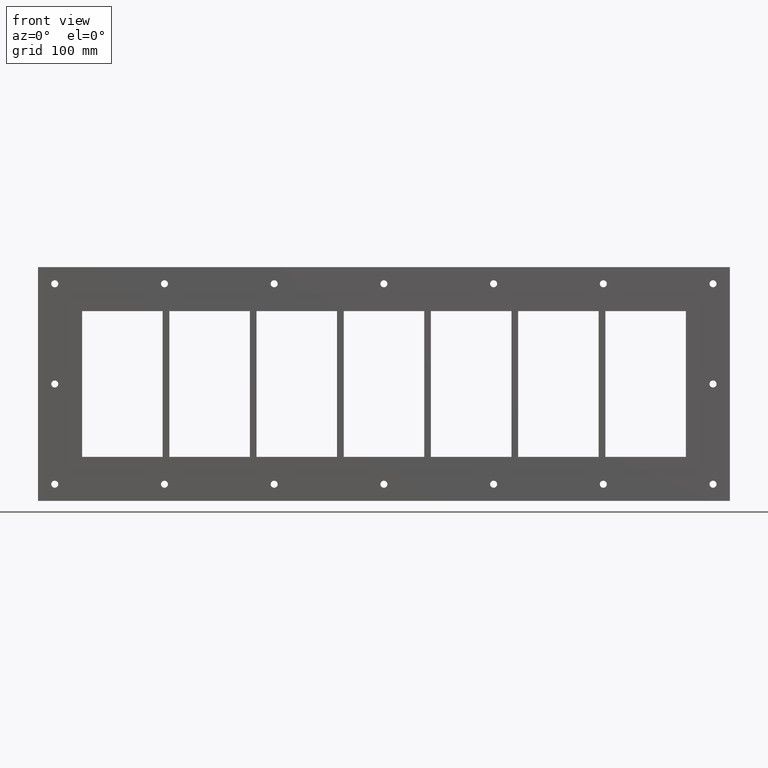
[diagram: clean part render]
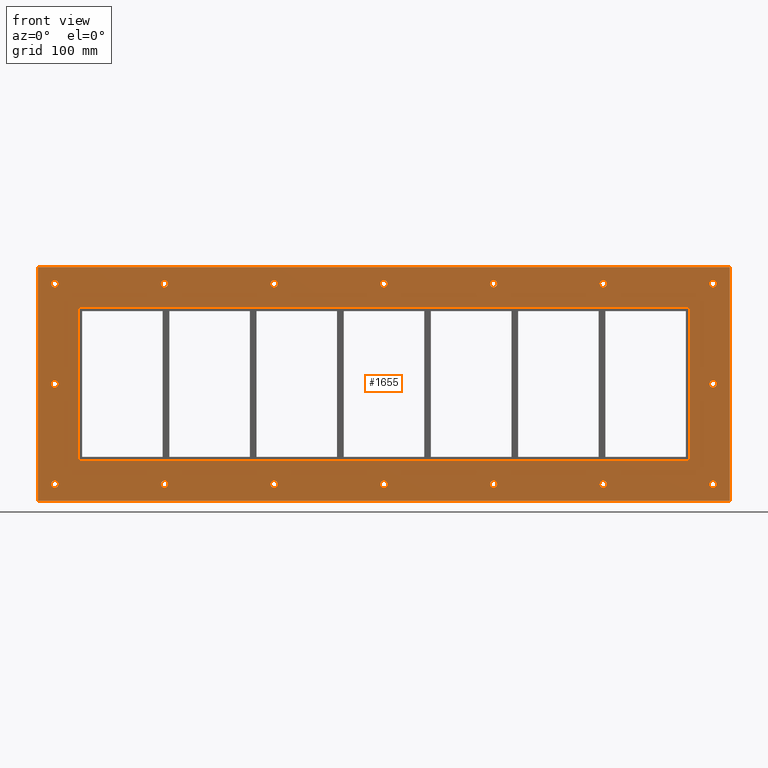
[diagram: same view with one face highlighted and labeled with its STEP entity id]
A machine part, front view. The second image highlights one B-rep face of the part: STEP entity #1655.
In plain terms, the highlighted planar face has unit normal (0, 1, 0).
Its self-contained STEP definition (entity closure, byte-faithful):
#84=CARTESIAN_POINT('',(-487.50000000000006,0.0,-149.99999999999997));
#85=VERTEX_POINT('',#84);
#86=CARTESIAN_POINT('',(-492.75000000000006,0.0,-149.99999999999997));
#87=DIRECTION('',(0.0,1.0,0.0));
#88=DIRECTION('',(1.0,0.0,0.0));
#89=AXIS2_PLACEMENT_3D('',#86,#87,#88);
#90=CIRCLE('',#89,5.25);
#91=EDGE_CURVE('',#85,#85,#90,.T.);
#112=CARTESIAN_POINT('',(497.69999999999976,0.0,3.552714E-014));
#113=VERTEX_POINT('',#112);
#114=CARTESIAN_POINT('',(492.44999999999976,0.0,3.552714E-014));
#115=DIRECTION('',(0.0,1.0,0.0));
#116=DIRECTION('',(1.0,0.0,0.0));
#117=AXIS2_PLACEMENT_3D('',#114,#115,#116);
#118=CIRCLE('',#117,5.25);
#119=EDGE_CURVE('',#113,#113,#118,.T.);
#140=CARTESIAN_POINT('',(-487.50000000000006,0.0,3.552714E-014));
#141=VERTEX_POINT('',#140);
#142=CARTESIAN_POINT('',(-492.75000000000006,0.0,3.552714E-014));
#143=DIRECTION('',(0.0,1.0,0.0));
#144=DIRECTION('',(1.0,0.0,0.0));
#145=AXIS2_PLACEMENT_3D('',#142,#143,#144);
#146=CIRCLE('',#145,5.25);
#147=EDGE_CURVE('',#141,#141,#146,.T.);
#168=CARTESIAN_POINT('',(-323.30000000000013,0.0,150.00000000000003));
#169=VERTEX_POINT('',#168);
#170=CARTESIAN_POINT('',(-328.55000000000018,0.0,150.00000000000003));
#171=DIRECTION('',(0.0,1.0,0.0));
#172=DIRECTION('',(1.0,0.0,0.0));
#173=AXIS2_PLACEMENT_3D('',#170,#171,#172);
#174=CIRCLE('',#173,5.25);
#175=EDGE_CURVE('',#169,#169,#174,.T.);
#196=CARTESIAN_POINT('',(-323.30000000000013,0.0,-149.99999999999997));
#197=VERTEX_POINT('',#196);
#198=CARTESIAN_POINT('',(-328.55000000000018,0.0,-149.99999999999997));
#199=DIRECTION('',(0.0,1.0,0.0));
#200=DIRECTION('',(1.0,0.0,0.0));
#201=AXIS2_PLACEMENT_3D('',#198,#199,#200);
#202=CIRCLE('',#201,5.25);
#203=EDGE_CURVE('',#197,#197,#202,.T.);
#224=CARTESIAN_POINT('',(-159.10000000000014,0.0,150.00000000000003));
#225=VERTEX_POINT('',#224);
#226=CARTESIAN_POINT('',(-164.35000000000014,0.0,150.00000000000003));
#227=DIRECTION('',(0.0,1.0,0.0));
#228=DIRECTION('',(1.0,0.0,0.0));
#229=AXIS2_PLACEMENT_3D('',#226,#227,#228);
#230=CIRCLE('',#229,5.25);
#231=EDGE_CURVE('',#225,#225,#230,.T.);
#252=CARTESIAN_POINT('',(-159.10000000000014,0.0,-149.99999999999997));
#253=VERTEX_POINT('',#252);
#254=CARTESIAN_POINT('',(-164.35000000000014,0.0,-149.99999999999997));
#255=DIRECTION('',(0.0,1.0,0.0));
#256=DIRECTION('',(1.0,0.0,0.0));
#257=AXIS2_PLACEMENT_3D('',#254,#255,#256);
#258=CIRCLE('',#257,5.25);
#259=EDGE_CURVE('',#253,#253,#258,.T.);
#280=CARTESIAN_POINT('',(5.099999999999874,0.0,150.00000000000003));
#281=VERTEX_POINT('',#280);
#282=CARTESIAN_POINT('',(-0.150000000000112,0.0,150.00000000000003));
#283=DIRECTION('',(0.0,1.0,0.0));
#284=DIRECTION('',(1.0,0.0,0.0));
#285=AXIS2_PLACEMENT_3D('',#282,#283,#284);
#286=CIRCLE('',#285,5.25);
#287=EDGE_CURVE('',#281,#281,#286,.T.);
#308=CARTESIAN_POINT('',(5.099999999999874,0.0,-149.99999999999997));
#309=VERTEX_POINT('',#308);
#310=CARTESIAN_POINT('',(-0.150000000000112,0.0,-149.99999999999997));
#311=DIRECTION('',(0.0,1.0,0.0));
#312=DIRECTION('',(1.0,0.0,0.0));
#313=AXIS2_PLACEMENT_3D('',#310,#311,#312);
#314=CIRCLE('',#313,5.25);
#315=EDGE_CURVE('',#309,#309,#314,.T.);
#336=CARTESIAN_POINT('',(169.29999999999981,0.0,150.00000000000003));
#337=VERTEX_POINT('',#336);
#338=CARTESIAN_POINT('',(164.04999999999976,0.0,150.00000000000003));
#339=DIRECTION('',(0.0,1.0,0.0));
#340=DIRECTION('',(1.0,0.0,0.0));
#341=AXIS2_PLACEMENT_3D('',#338,#339,#340);
#342=CIRCLE('',#341,5.25);
#343=EDGE_CURVE('',#337,#337,#342,.T.);
#364=CARTESIAN_POINT('',(169.29999999999981,0.0,-149.99999999999997));
#365=VERTEX_POINT('',#364);
#366=CARTESIAN_POINT('',(164.04999999999976,0.0,-149.99999999999997));
#367=DIRECTION('',(0.0,1.0,0.0));
#368=DIRECTION('',(1.0,0.0,0.0));
#369=AXIS2_PLACEMENT_3D('',#366,#367,#368);
#370=CIRCLE('',#369,5.25);
#371=EDGE_CURVE('',#365,#365,#370,.T.);
#392=CARTESIAN_POINT('',(333.49999999999977,0.0,150.00000000000003));
#393=VERTEX_POINT('',#392);
#394=CARTESIAN_POINT('',(328.24999999999977,0.0,150.00000000000003));
#395=DIRECTION('',(0.0,1.0,0.0));
#396=DIRECTION('',(1.0,0.0,0.0));
#397=AXIS2_PLACEMENT_3D('',#394,#395,#396);
#398=CIRCLE('',#397,5.25);
#399=EDGE_CURVE('',#393,#393,#398,.T.);
#420=CARTESIAN_POINT('',(333.49999999999977,0.0,-149.99999999999997));
#421=VERTEX_POINT('',#420);
#422=CARTESIAN_POINT('',(328.24999999999977,0.0,-149.99999999999997));
#423=DIRECTION('',(0.0,1.0,0.0));
#424=DIRECTION('',(1.0,0.0,0.0));
#425=AXIS2_PLACEMENT_3D('',#422,#423,#424);
#426=CIRCLE('',#425,5.25);
#427=EDGE_CURVE('',#421,#421,#426,.T.);
#448=CARTESIAN_POINT('',(497.69999999999976,0.0,-149.99999999999997));
#449=VERTEX_POINT('',#448);
#450=CARTESIAN_POINT('',(492.44999999999976,0.0,-149.99999999999997));
#451=DIRECTION('',(0.0,1.0,0.0));
#452=DIRECTION('',(1.0,0.0,0.0));
#453=AXIS2_PLACEMENT_3D('',#450,#451,#452);
#454=CIRCLE('',#453,5.25);
#455=EDGE_CURVE('',#449,#449,#454,.T.);
#476=CARTESIAN_POINT('',(-487.50000000000006,0.0,150.00000000000003));
#477=VERTEX_POINT('',#476);
#478=CARTESIAN_POINT('',(-492.75000000000006,0.0,150.00000000000003));
#479=DIRECTION('',(0.0,1.0,0.0));
#480=DIRECTION('',(1.0,0.0,0.0));
#481=AXIS2_PLACEMENT_3D('',#478,#479,#480);
#482=CIRCLE('',#481,5.25);
#483=EDGE_CURVE('',#477,#477,#482,.T.);
#504=CARTESIAN_POINT('',(497.69999999999976,0.0,150.00000000000003));
#505=VERTEX_POINT('',#504);
#506=CARTESIAN_POINT('',(492.44999999999976,0.0,150.00000000000003));
#507=DIRECTION('',(0.0,1.0,0.0));
#508=DIRECTION('',(1.0,0.0,0.0));
#509=AXIS2_PLACEMENT_3D('',#506,#507,#508);
#510=CIRCLE('',#509,5.25);
#511=EDGE_CURVE('',#505,#505,#510,.T.);
#1498=CARTESIAN_POINT('',(3.692463E-014,0.0,0.0));
#1499=DIRECTION('',(0.0,1.0,0.0));
#1500=DIRECTION('',(0.0,0.0,1.0));
#1501=AXIS2_PLACEMENT_3D('',#1498,#1499,#1500);
#1502=PLANE('',#1501);
#1503=CARTESIAN_POINT('',(-517.75,0.0,174.99999999999997));
#1504=VERTEX_POINT('',#1503);
#1505=CARTESIAN_POINT('',(517.75,0.0,174.99999999999997));
#1506=VERTEX_POINT('',#1505);
#1507=CARTESIAN_POINT('',(-517.75,0.0,174.99999999999997));
#1508=DIRECTION('',(1.0,0.0,0.0));
#1509=VECTOR('',#1508,1035.5);
#1510=LINE('',#1507,#1509);
#1511=EDGE_CURVE('',#1504,#1506,#1510,.T.);
#1512=ORIENTED_EDGE('',*,*,#1511,.F.);
#1513=CARTESIAN_POINT('',(-517.75,0.0,-174.99999999999997));
#1514=VERTEX_POINT('',#1513);
#1515=CARTESIAN_POINT('',(-517.75,0.0,-174.99999999999997));
#1516=DIRECTION('',(0.0,0.0,1.0));
#1517=VECTOR('',#1516,349.99999999999994);
#1518=LINE('',#1515,#1517);
#1519=EDGE_CURVE('',#1514,#1504,#1518,.T.);
#1520=ORIENTED_EDGE('',*,*,#1519,.F.);
#1521=CARTESIAN_POINT('',(517.75,0.0,-174.99999999999997));
#1522=VERTEX_POINT('',#1521);
#1523=CARTESIAN_POINT('',(517.75,0.0,-174.99999999999997));
#1524=DIRECTION('',(-1.0,0.0,0.0));
#1525=VECTOR('',#1524,1035.5);
#1526=LINE('',#1523,#1525);
#1527=EDGE_CURVE('',#1522,#1514,#1526,.T.);
#1528=ORIENTED_EDGE('',*,*,#1527,.F.);
#1529=CARTESIAN_POINT('',(517.75,0.0,174.99999999999997));
#1530=DIRECTION('',(0.0,0.0,-1.0));
#1531=VECTOR('',#1530,349.99999999999994);
#1532=LINE('',#1529,#1531);
#1533=EDGE_CURVE('',#1506,#1522,#1532,.T.);
#1534=ORIENTED_EDGE('',*,*,#1533,.F.);
#1535=EDGE_LOOP('',(#1512,#1520,#1528,#1534));
#1536=FACE_OUTER_BOUND('',#1535,.T.);
#1537=ORIENTED_EDGE('',*,*,#91,.T.);
#1538=EDGE_LOOP('',(#1537));
#1539=FACE_BOUND('',#1538,.T.);
#1540=ORIENTED_EDGE('',*,*,#119,.T.);
#1541=EDGE_LOOP('',(#1540));
#1542=FACE_BOUND('',#1541,.T.);
#1543=ORIENTED_EDGE('',*,*,#147,.T.);
#1544=EDGE_LOOP('',(#1543));
#1545=FACE_BOUND('',#1544,.T.);
#1546=ORIENTED_EDGE('',*,*,#175,.T.);
#1547=EDGE_LOOP('',(#1546));
#1548=FACE_BOUND('',#1547,.T.);
#1549=ORIENTED_EDGE('',*,*,#203,.T.);
#1550=EDGE_LOOP('',(#1549));
#1551=FACE_BOUND('',#1550,.T.);
#1552=ORIENTED_EDGE('',*,*,#231,.T.);
#1553=EDGE_LOOP('',(#1552));
#1554=FACE_BOUND('',#1553,.T.);
#1555=ORIENTED_EDGE('',*,*,#259,.T.);
#1556=EDGE_LOOP('',(#1555));
#1557=FACE_BOUND('',#1556,.T.);
#1558=ORIENTED_EDGE('',*,*,#287,.T.);
#1559=EDGE_LOOP('',(#1558));
#1560=FACE_BOUND('',#1559,.T.);
#1561=ORIENTED_EDGE('',*,*,#315,.T.);
#1562=EDGE_LOOP('',(#1561));
#1563=FACE_BOUND('',#1562,.T.);
#1564=ORIENTED_EDGE('',*,*,#343,.T.);
#1565=EDGE_LOOP('',(#1564));
#1566=FACE_BOUND('',#1565,.T.);
#1567=ORIENTED_EDGE('',*,*,#371,.T.);
#1568=EDGE_LOOP('',(#1567));
#1569=FACE_BOUND('',#1568,.T.);
#1570=ORIENTED_EDGE('',*,*,#399,.T.);
#1571=EDGE_LOOP('',(#1570));
#1572=FACE_BOUND('',#1571,.T.);
#1573=ORIENTED_EDGE('',*,*,#427,.T.);
#1574=EDGE_LOOP('',(#1573));
#1575=FACE_BOUND('',#1574,.T.);
#1576=ORIENTED_EDGE('',*,*,#455,.T.);
#1577=EDGE_LOOP('',(#1576));
#1578=FACE_BOUND('',#1577,.T.);
#1579=ORIENTED_EDGE('',*,*,#483,.T.);
#1580=EDGE_LOOP('',(#1579));
#1581=FACE_BOUND('',#1580,.T.);
#1582=ORIENTED_EDGE('',*,*,#511,.T.);
#1583=EDGE_LOOP('',(#1582));
#1584=FACE_BOUND('',#1583,.T.);
#1585=CARTESIAN_POINT('',(-457.75000000000006,0.0,-108.99999999999999));
#1586=VERTEX_POINT('',#1585);
#1587=CARTESIAN_POINT('',(-451.75000000000011,0.0,-115.0));
#1588=VERTEX_POINT('',#1587);
#1589=CARTESIAN_POINT('',(-451.75000000000011,0.0,-108.99999999999999));
#1590=DIRECTION('',(0.0,-1.0,0.0));
#1591=DIRECTION('',(-0.707106781186543,0.0,-0.707106781186552));
#1592=AXIS2_PLACEMENT_3D('',#1589,#1590,#1591);
#1593=CIRCLE('',#1592,6.000000000000001);
#1594=EDGE_CURVE('',#1586,#1588,#1593,.T.);
#1595=ORIENTED_EDGE('',*,*,#1594,.F.);
#1596=CARTESIAN_POINT('',(-457.75000000000006,0.0,108.99999999999999));
#1597=VERTEX_POINT('',#1596);
#1598=CARTESIAN_POINT('',(-457.75000000000006,0.0,109.0));
#1599=DIRECTION('',(0.0,0.0,-1.0));
#1600=VECTOR('',#1599,218.0);
#1601=LINE('',#1598,#1600);
#1602=EDGE_CURVE('',#1597,#1586,#1601,.T.);
#1603=ORIENTED_EDGE('',*,*,#1602,.F.);
#1604=CARTESIAN_POINT('',(-451.75000000000011,0.0,115.0));
#1605=VERTEX_POINT('',#1604);
#1606=CARTESIAN_POINT('',(-451.75000000000011,0.0,108.99999999999999));
#1607=DIRECTION('',(0.0,-1.0,0.0));
#1608=DIRECTION('',(-0.707106781186543,0.0,0.707106781186552));
#1609=AXIS2_PLACEMENT_3D('',#1606,#1607,#1608);
#1610=CIRCLE('',#1609,6.000000000000001);
#1611=EDGE_CURVE('',#1605,#1597,#1610,.T.);
#1612=ORIENTED_EDGE('',*,*,#1611,.F.);
#1613=CARTESIAN_POINT('',(451.75000000000011,0.0,115.0));
#1614=VERTEX_POINT('',#1613);
#1615=CARTESIAN_POINT('',(451.75000000000011,0.0,115.0));
#1616=DIRECTION('',(-1.0,0.0,0.0));
#1617=VECTOR('',#1616,903.50000000000023);
#1618=LINE('',#1615,#1617);
#1619=EDGE_CURVE('',#1614,#1605,#1618,.T.);
#1620=ORIENTED_EDGE('',*,*,#1619,.F.);
#1621=CARTESIAN_POINT('',(457.75000000000006,0.0,109.0));
#1622=VERTEX_POINT('',#1621);
#1623=CARTESIAN_POINT('',(451.75000000000011,0.0,109.0));
#1624=DIRECTION('',(0.0,-1.0,0.0));
#1625=DIRECTION('',(0.707106781186545,0.0,0.70710678118655));
#1626=AXIS2_PLACEMENT_3D('',#1623,#1624,#1625);
#1627=CIRCLE('',#1626,6.000000000000001);
#1628=EDGE_CURVE('',#1622,#1614,#1627,.T.);
#1629=ORIENTED_EDGE('',*,*,#1628,.F.);
#1630=CARTESIAN_POINT('',(457.75000000000006,0.0,-108.99999999999999));
#1631=VERTEX_POINT('',#1630);
#1632=CARTESIAN_POINT('',(457.75000000000006,0.0,-109.0));
#1633=DIRECTION('',(0.0,0.0,1.0));
#1634=VECTOR('',#1633,218.0);
#1635=LINE('',#1632,#1634);
#1636=EDGE_CURVE('',#1631,#1622,#1635,.T.);
#1637=ORIENTED_EDGE('',*,*,#1636,.F.);
#1638=CARTESIAN_POINT('',(451.75000000000011,0.0,-115.0));
#1639=VERTEX_POINT('',#1638);
#1640=CARTESIAN_POINT('',(451.75000000000011,0.0,-108.99999999999999));
#1641=DIRECTION('',(0.0,-1.0,0.0));
#1642=DIRECTION('',(0.707106781186543,0.0,-0.707106781186552));
#1643=AXIS2_PLACEMENT_3D('',#1640,#1641,#1642);
#1644=CIRCLE('',#1643,6.000000000000001);
#1645=EDGE_CURVE('',#1639,#1631,#1644,.T.);
#1646=ORIENTED_EDGE('',*,*,#1645,.F.);
#1647=CARTESIAN_POINT('',(-451.75000000000006,0.0,-115.0));
#1648=DIRECTION('',(1.0,0.0,0.0));
#1649=VECTOR('',#1648,903.50000000000023);
#1650=LINE('',#1647,#1649);
#1651=EDGE_CURVE('',#1588,#1639,#1650,.T.);
#1652=ORIENTED_EDGE('',*,*,#1651,.F.);
#1653=EDGE_LOOP('',(#1595,#1603,#1612,#1620,#1629,#1637,#1646,#1652));
#1654=FACE_BOUND('',#1653,.T.);
#1655=ADVANCED_FACE('',(#1536,#1539,#1542,#1545,#1548,#1551,#1554,#1557,#1560,#1563,#1566,#1569,#1572,#1575,#1578,#1581,#1584,#1654),#1502,.F.);